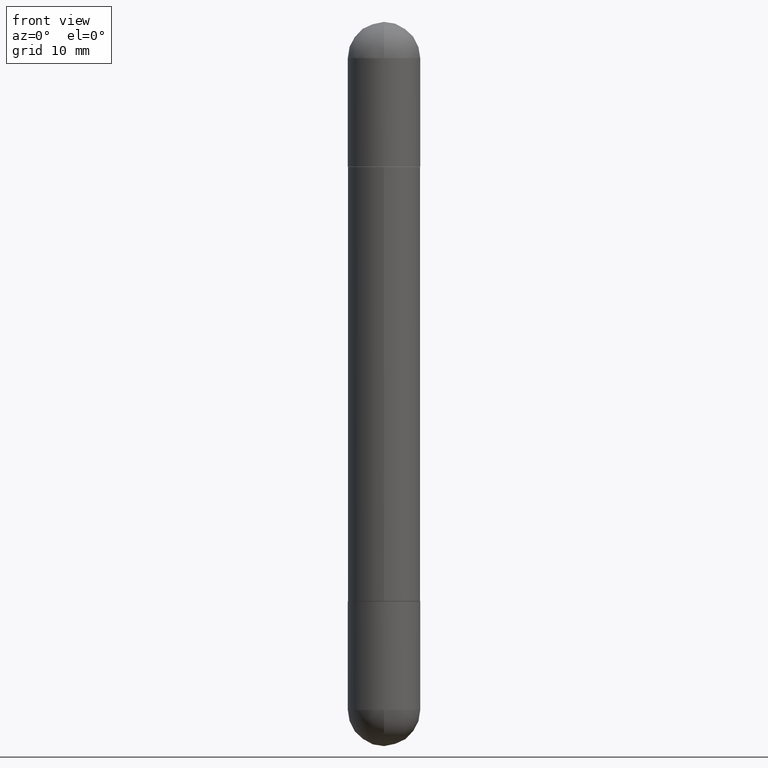
[diagram: clean part render]
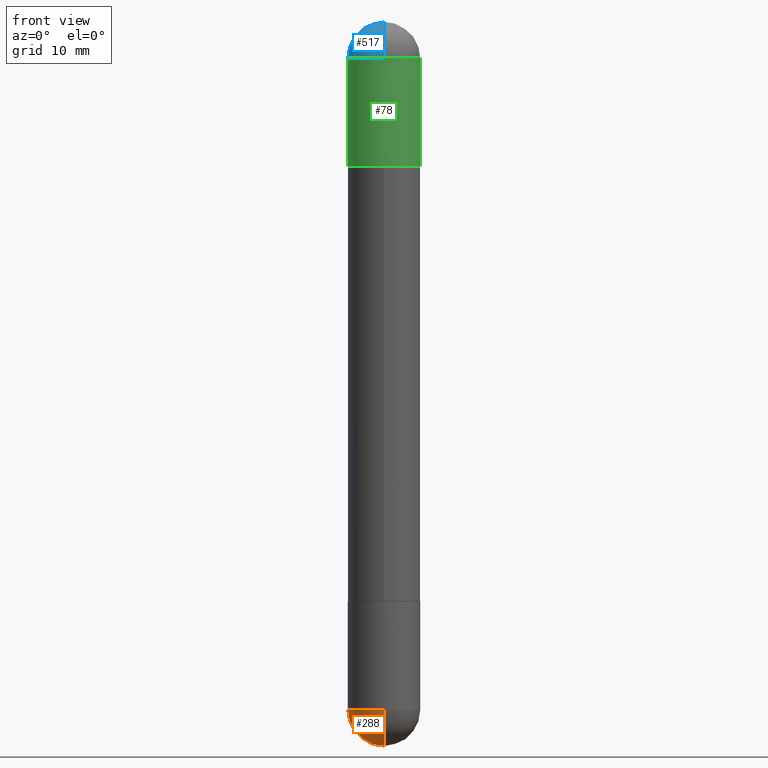
[diagram: same view with three faces highlighted in distinct colors, each labeled with its STEP entity id]
A machine part, front view with three faces highlighted in distinct colors.
Their STEP definitions:

[orange] entity #288 — the highlighted spherical surface has radius 3.175 mm.
#55 = DIRECTION ( 'NONE',  ( 1.000000000000000000, -6.982962677686270655E-15, 0.000000000000000000 ) ) ;
#74 = CARTESIAN_POINT ( 'NONE',  ( 5.807988414689700538E-29, -8.292268179752471696E-15, -2.375000000000000000 ) ) ;
#105 = ORIENTED_EDGE ( 'NONE', *, *, #147, .F. ) ;
#112 = VERTEX_POINT ( 'NONE', #489 ) ;
#127 = CIRCLE ( 'NONE', #226, 0.1250000000000000000 ) ;
#129 = AXIS2_PLACEMENT_3D ( 'NONE', #806, #753, #195 ) ;
#147 = EDGE_CURVE ( 'NONE', #421, #112, #646, .T. ) ;
#188 = EDGE_LOOP ( 'NONE', ( #105, #729, #516, #591 ) ) ;
#195 = DIRECTION ( 'NONE',  ( -7.105427357601000281E-15, -1.000000000000000000, 0.000000000000000000 ) ) ;
#209 = DIRECTION ( 'NONE',  ( 6.982962677686265922E-15, 1.000000000000000000, -4.370956789862814839E-15 ) ) ;
#226 = AXIS2_PLACEMENT_3D ( 'NONE', #74, #345, #55 ) ;
#233 = EDGE_CURVE ( 'NONE', #359, #290, #127, .T. ) ;
#266 = CARTESIAN_POINT ( 'NONE',  ( 5.807988414689700538E-29, -8.292268179752471696E-15, -2.375000000000000000 ) ) ;
#288 = ADVANCED_FACE ( 'NONE', ( #515 ), #755, .T. ) ;
#290 = VERTEX_POINT ( 'NONE', #707 ) ;
#314 = AXIS2_PLACEMENT_3D ( 'NONE', #618, #432, #793 ) ;
#344 = CIRCLE ( 'NONE', #129, 0.1250000000000001943 ) ;
#345 = DIRECTION ( 'NONE',  ( -2.445468806185136597E-29, 3.491481338843145583E-15, 1.000000000000000000 ) ) ;
#352 = AXIS2_PLACEMENT_3D ( 'NONE', #449, #645, #209 ) ;
#359 = VERTEX_POINT ( 'NONE', #632 ) ;
#421 = VERTEX_POINT ( 'NONE', #581 ) ;
#426 = AXIS2_PLACEMENT_3D ( 'NONE', #266, #704, #643 ) ;
#432 = DIRECTION ( 'NONE',  ( 1.000000000000000000, -6.982962677686265922E-15, 4.883557194083112340E-29 ) ) ;
#449 = CARTESIAN_POINT ( 'NONE',  ( 5.476868636775814291E-29, -8.766450547892521992E-15, -2.375000000000000000 ) ) ;
#489 = CARTESIAN_POINT ( 'NONE',  ( 8.728703347108403340E-16, 0.1249999999999915623, -2.375000000000000888 ) ) ;
#515 = FACE_OUTER_BOUND ( 'NONE', #188, .T. ) ;
#516 = ORIENTED_EDGE ( 'NONE', *, *, #233, .F. ) ;
#543 = EDGE_CURVE ( 'NONE', #421, #290, #344, .T. ) ;
#581 = CARTESIAN_POINT ( 'NONE',  ( 5.787897026856327965E-29, -9.195231672753244292E-15, -2.500000000000000444 ) ) ;
#591 = ORIENTED_EDGE ( 'NONE', *, *, #679, .F. ) ;
#618 = CARTESIAN_POINT ( 'NONE',  ( 5.476868636775814291E-29, -8.766450547892521992E-15, -2.375000000000000000 ) ) ;
#632 = CARTESIAN_POINT ( 'NONE',  ( -0.1250000000000000000, -6.749437009019256592E-15, -2.375000000000000000 ) ) ;
#643 = DIRECTION ( 'NONE',  ( 1.000000000000000000, -6.982962677686270655E-15, 0.000000000000000000 ) ) ;
#645 = DIRECTION ( 'NONE',  ( -1.000000000000000000, 6.982962677686265922E-15, -4.883557194083112901E-29 ) ) ;
#646 = CIRCLE ( 'NONE', #314, 0.1250000000000001943 ) ;
#679 = EDGE_CURVE ( 'NONE', #112, #359, #775, .T. ) ;
#704 = DIRECTION ( 'NONE',  ( -2.445468806185136597E-29, 3.491481338843145583E-15, 1.000000000000000000 ) ) ;
#707 = CARTESIAN_POINT ( 'NONE',  ( -8.881784197000694204E-16, -0.1250000000000086320, -2.374999999999999556 ) ) ;
#729 = ORIENTED_EDGE ( 'NONE', *, *, #543, .T. ) ;
#753 = DIRECTION ( 'NONE',  ( -1.000000000000000000, 7.105427357601001070E-15, -4.926315508542082329E-29 ) ) ;
#755 = SPHERICAL_SURFACE ( 'NONE', #352, 0.1250000000000001943 ) ;
#775 = CIRCLE ( 'NONE', #426, 0.1250000000000000000 ) ;
#793 = DIRECTION ( 'NONE',  ( 6.982962677686265133E-15, 1.000000000000000000, 0.000000000000000000 ) ) ;
#806 = CARTESIAN_POINT ( 'NONE',  ( 5.476868636775814291E-29, -8.766450547892521992E-15, -2.375000000000000000 ) ) ;

[blue] entity #517 — the highlighted spherical surface has radius 3.175 mm.
#12 = EDGE_CURVE ( 'NONE', #90, #67, #397, .T. ) ;
#21 = CIRCLE ( 'NONE', #443, 0.1250000000000000000 ) ;
#51 = CARTESIAN_POINT ( 'NONE',  ( 5.787897026856327965E-29, -9.195231672753244292E-15, -2.561107494060246644E-16 ) ) ;
#62 = CARTESIAN_POINT ( 'NONE',  ( 5.807988414689700538E-29, -8.292268179752471696E-15, -0.1250000000000004441 ) ) ;
#67 = VERTEX_POINT ( 'NONE', #444 ) ;
#81 = AXIS2_PLACEMENT_3D ( 'NONE', #628, #362, #567 ) ;
#90 = VERTEX_POINT ( 'NONE', #51 ) ;
#93 = AXIS2_PLACEMENT_3D ( 'NONE', #137, #210, #538 ) ;
#106 = CARTESIAN_POINT ( 'NONE',  ( 5.476868636775814291E-29, -8.766450547892521992E-15, -0.1250000000000004441 ) ) ;
#137 = CARTESIAN_POINT ( 'NONE',  ( 5.807988414689700538E-29, -8.292268179752471696E-15, -0.1250000000000004441 ) ) ;
#149 = VERTEX_POINT ( 'NONE', #740 ) ;
#153 = ORIENTED_EDGE ( 'NONE', *, *, #526, .T. ) ;
#163 = CARTESIAN_POINT ( 'NONE',  ( 5.476868636775814291E-29, -8.766450547892521992E-15, -0.1250000000000004441 ) ) ;
#210 = DIRECTION ( 'NONE',  ( 2.445468806185136597E-29, -3.491481338843145583E-15, 1.000000000000000000 ) ) ;
#328 = CIRCLE ( 'NONE', #713, 0.1250000000000001943 ) ;
#329 = EDGE_LOOP ( 'NONE', ( #456, #365, #625, #153 ) ) ;
#332 = CARTESIAN_POINT ( 'NONE',  ( -8.575622497213856334E-16, -0.1250000000000086320, -0.1250000000000008882 ) ) ;
#351 = DIRECTION ( 'NONE',  ( 1.000000000000000000, -6.860497997771530774E-15, -4.840798879624142912E-29 ) ) ;
#353 = AXIS2_PLACEMENT_3D ( 'NONE', #106, #507, #761 ) ;
#362 = DIRECTION ( 'NONE',  ( -1.000000000000000000, 6.982962677686265922E-15, 4.883557194083112340E-29 ) ) ;
#365 = ORIENTED_EDGE ( 'NONE', *, *, #12, .T. ) ;
#397 = CIRCLE ( 'NONE', #81, 0.1250000000000001943 ) ;
#433 = VERTEX_POINT ( 'NONE', #332 ) ;
#443 = AXIS2_PLACEMENT_3D ( 'NONE', #62, #810, #686 ) ;
#444 = CARTESIAN_POINT ( 'NONE',  ( 8.728703347108403340E-16, 0.1249999999999915623, -0.1250000000000000000 ) ) ;
#456 = ORIENTED_EDGE ( 'NONE', *, *, #756, .F. ) ;
#491 = DIRECTION ( 'NONE',  ( 6.860497997771529196E-15, 1.000000000000000000, 0.000000000000000000 ) ) ;
#507 = DIRECTION ( 'NONE',  ( 1.000000000000000000, -6.982962677686265922E-15, -4.883557194083112901E-29 ) ) ;
#513 = SPHERICAL_SURFACE ( 'NONE', #353, 0.1250000000000001943 ) ;
#517 = ADVANCED_FACE ( 'NONE', ( #566 ), #513, .T. ) ;
#526 = EDGE_CURVE ( 'NONE', #149, #433, #21, .T. ) ;
#538 = DIRECTION ( 'NONE',  ( 1.000000000000000000, -6.982962677686270655E-15, 0.000000000000000000 ) ) ;
#566 = FACE_OUTER_BOUND ( 'NONE', #329, .T. ) ;
#567 = DIRECTION ( 'NONE',  ( -6.982962677686265133E-15, -1.000000000000000000, 0.000000000000000000 ) ) ;
#586 = CIRCLE ( 'NONE', #93, 0.1250000000000000000 ) ;
#625 = ORIENTED_EDGE ( 'NONE', *, *, #634, .T. ) ;
#628 = CARTESIAN_POINT ( 'NONE',  ( 5.476868636775814291E-29, -8.766450547892521992E-15, -0.1250000000000004441 ) ) ;
#634 = EDGE_CURVE ( 'NONE', #67, #149, #586, .T. ) ;
#686 = DIRECTION ( 'NONE',  ( 1.000000000000000000, -6.982962677686270655E-15, 0.000000000000000000 ) ) ;
#713 = AXIS2_PLACEMENT_3D ( 'NONE', #163, #351, #491 ) ;
#740 = CARTESIAN_POINT ( 'NONE',  ( -0.1250000000000000000, -6.780053178997941168E-15, -0.1250000000000004441 ) ) ;
#756 = EDGE_CURVE ( 'NONE', #90, #433, #328, .T. ) ;
#761 = DIRECTION ( 'NONE',  ( 6.982962677686265922E-15, 1.000000000000000000, 3.551402391763536859E-15 ) ) ;
#810 = DIRECTION ( 'NONE',  ( 2.445468806185136597E-29, -3.491481338843145583E-15, 1.000000000000000000 ) ) ;

[green] entity #78 — the highlighted cylindrical surface (edge-blend (fillet) strip) has radius 3.175 mm, axis along (-0, 0, -1).
#21 = CIRCLE ( 'NONE', #443, 0.1250000000000000000 ) ;
#25 = CARTESIAN_POINT ( 'NONE',  ( 0.1250000000000000000, -8.728703347107833388E-16, -2.500000000000000444 ) ) ;
#31 = VECTOR ( 'NONE', #117, 39.37007874015748143 ) ;
#62 = CARTESIAN_POINT ( 'NONE',  ( 5.807988414689700538E-29, -8.292268179752471696E-15, -0.1250000000000004441 ) ) ;
#78 = ADVANCED_FACE ( 'NONE', ( #689 ), #558, .T. ) ;
#91 = EDGE_CURVE ( 'NONE', #433, #307, #762, .T. ) ;
#92 = AXIS2_PLACEMENT_3D ( 'NONE', #551, #114, #237 ) ;
#114 = DIRECTION ( 'NONE',  ( 2.445468806185136597E-29, -3.491481338843145583E-15, 1.000000000000000000 ) ) ;
#117 = DIRECTION ( 'NONE',  ( -2.445468806185136877E-29, 3.491481338843145188E-15, -1.000000000000000000 ) ) ;
#143 = AXIS2_PLACEMENT_3D ( 'NONE', #241, #234, #500 ) ;
#149 = VERTEX_POINT ( 'NONE', #740 ) ;
#173 = VERTEX_POINT ( 'NONE', #778 ) ;
#174 = EDGE_CURVE ( 'NONE', #307, #173, #693, .T. ) ;
#178 = ORIENTED_EDGE ( 'NONE', *, *, #174, .F. ) ;
#180 = EDGE_LOOP ( 'NONE', ( #429, #502, #414, #178, #316 ) ) ;
#215 = CARTESIAN_POINT ( 'NONE',  ( 0.1250000000000000000, -8.510485763430165164E-15, -0.1250000000000004441 ) ) ;
#234 = DIRECTION ( 'NONE',  ( -2.445468806185136597E-29, 3.491481338843145583E-15, -1.000000000000000000 ) ) ;
#237 = DIRECTION ( 'NONE',  ( 1.000000000000000000, -6.982962677686270655E-15, 0.000000000000000000 ) ) ;
#241 = CARTESIAN_POINT ( 'NONE',  ( 0.000000000000000000, 0.000000000000000000, -2.500000000000000444 ) ) ;
#248 = CARTESIAN_POINT ( 'NONE',  ( 4.890937612370273194E-29, -6.982962677686291165E-15, -0.5000000000000006661 ) ) ;
#268 = CARTESIAN_POINT ( 'NONE',  ( -0.1250000000000000000, 8.575622497214414453E-16, -2.500000000000000444 ) ) ;
#274 = VERTEX_POINT ( 'NONE', #769 ) ;
#277 = DIRECTION ( 'NONE',  ( -2.445468806185136877E-29, 3.491481338843145188E-15, -1.000000000000000000 ) ) ;
#307 = VERTEX_POINT ( 'NONE', #215 ) ;
#316 = ORIENTED_EDGE ( 'NONE', *, *, #91, .F. ) ;
#332 = CARTESIAN_POINT ( 'NONE',  ( -8.575622497213856334E-16, -0.1250000000000086320, -0.1250000000000008882 ) ) ;
#336 = EDGE_CURVE ( 'NONE', #149, #274, #702, .T. ) ;
#414 = ORIENTED_EDGE ( 'NONE', *, *, #533, .T. ) ;
#429 = ORIENTED_EDGE ( 'NONE', *, *, #526, .F. ) ;
#433 = VERTEX_POINT ( 'NONE', #332 ) ;
#443 = AXIS2_PLACEMENT_3D ( 'NONE', #62, #810, #686 ) ;
#493 = CIRCLE ( 'NONE', #721, 0.1250000000000000000 ) ;
#500 = DIRECTION ( 'NONE',  ( 1.000000000000000000, -6.982962677686266711E-15, 0.000000000000000000 ) ) ;
#502 = ORIENTED_EDGE ( 'NONE', *, *, #336, .T. ) ;
#526 = EDGE_CURVE ( 'NONE', #149, #433, #21, .T. ) ;
#533 = EDGE_CURVE ( 'NONE', #274, #173, #493, .T. ) ;
#551 = CARTESIAN_POINT ( 'NONE',  ( 5.807988414689700538E-29, -8.292268179752471696E-15, -0.1250000000000004441 ) ) ;
#558 = CYLINDRICAL_SURFACE ( 'NONE', #143, 0.1250000000000000000 ) ;
#607 = VECTOR ( 'NONE', #277, 39.37007874015748143 ) ;
#636 = DIRECTION ( 'NONE',  ( 2.445468806185136597E-29, -3.491481338843145583E-15, 1.000000000000000000 ) ) ;
#686 = DIRECTION ( 'NONE',  ( 1.000000000000000000, -6.982962677686270655E-15, 0.000000000000000000 ) ) ;
#689 = FACE_OUTER_BOUND ( 'NONE', #180, .T. ) ;
#693 = LINE ( 'NONE', #25, #607 ) ;
#700 = DIRECTION ( 'NONE',  ( 1.000000000000000000, -6.982962677686270655E-15, 0.000000000000000000 ) ) ;
#702 = LINE ( 'NONE', #268, #31 ) ;
#721 = AXIS2_PLACEMENT_3D ( 'NONE', #248, #636, #700 ) ;
#740 = CARTESIAN_POINT ( 'NONE',  ( -0.1250000000000000000, -6.780053178997941168E-15, -0.1250000000000004441 ) ) ;
#762 = CIRCLE ( 'NONE', #92, 0.1250000000000000000 ) ;
#769 = CARTESIAN_POINT ( 'NONE',  ( -0.1250000000000000000, -6.780053178997939591E-15, -0.5000000000000006661 ) ) ;
#778 = CARTESIAN_POINT ( 'NONE',  ( 0.1250000000000000000, -7.855833012397075293E-15, -0.5000000000000006661 ) ) ;
#810 = DIRECTION ( 'NONE',  ( 2.445468806185136597E-29, -3.491481338843145583E-15, 1.000000000000000000 ) ) ;